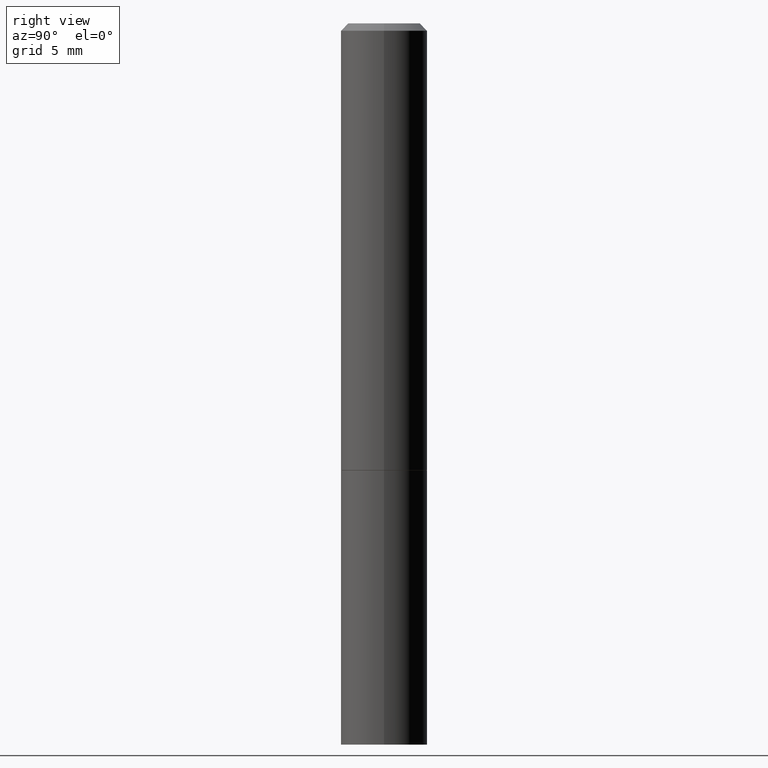
[diagram: clean part render]
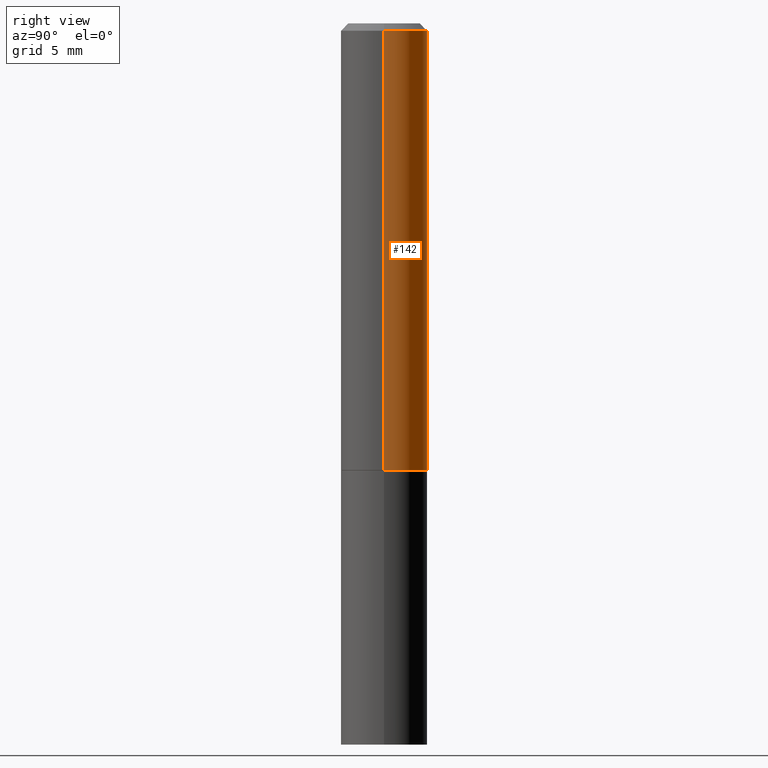
[diagram: same view with one face highlighted and labeled with its STEP entity id]
A machine part, right view. The second image highlights one B-rep face of the part: STEP entity #142.
In plain terms, the highlighted cylindrical surface (partial cylindrical patch) has radius 2.9997 mm, axis along (-0, 0, 1).
Its self-contained STEP definition (entity closure, byte-faithful):
#4 = DIRECTION ( 'NONE',  ( 1.000000000000000000, -6.982962677686265133E-15, 0.000000000000000000 ) ) ;
#5 = EDGE_CURVE ( 'NONE', #256, #266, #314, .T. ) ;
#28 = ORIENTED_EDGE ( 'NONE', *, *, #232, .T. ) ;
#38 = DIRECTION ( 'NONE',  ( 1.000000000000000000, -6.982962677686266711E-15, 0.000000000000000000 ) ) ;
#41 = FACE_OUTER_BOUND ( 'NONE', #196, .T. ) ;
#47 = DIRECTION ( 'NONE',  ( -2.445468806185136877E-29, 3.491481338843145188E-15, 1.000000000000000000 ) ) ;
#48 = CARTESIAN_POINT ( 'NONE',  ( 4.890937612370281041E-31, -6.982962677686302702E-17, -0.02000000000000003511 ) ) ;
#67 = LINE ( 'NONE', #102, #285 ) ;
#73 = CARTESIAN_POINT ( 'NONE',  ( 0.1180999999999999966, -5.082549384953964283E-15, -1.219500000000000028 ) ) ;
#77 = EDGE_CURVE ( 'NONE', #256, #138, #184, .T. ) ;
#90 = DIRECTION ( 'NONE',  ( -2.445468806185136597E-29, 3.491481338843145583E-15, 1.000000000000000000 ) ) ;
#94 = EDGE_CURVE ( 'NONE', #138, #113, #134, .T. ) ;
#102 = CARTESIAN_POINT ( 'NONE',  ( -0.1180999999999999134, 8.391509709326777040E-16, -5.809262341591039580E-30 ) ) ;
#113 = VERTEX_POINT ( 'NONE', #187 ) ;
#122 = AXIS2_PLACEMENT_3D ( 'NONE', #176, #90, #207 ) ;
#134 = CIRCLE ( 'NONE', #265, 0.1180999999999998301 ) ;
#138 = VERTEX_POINT ( 'NONE', #321 ) ;
#142 = ADVANCED_FACE ( 'NONE', ( #41 ), #300, .T. ) ;
#143 = DIRECTION ( 'NONE',  ( -2.445468806185136597E-29, 3.491481338843145583E-15, 1.000000000000000000 ) ) ;
#146 = VECTOR ( 'NONE', #188, 39.37007874015748143 ) ;
#169 = CARTESIAN_POINT ( 'NONE',  ( 2.982249209142773869E-29, -4.257861492719216809E-15, -1.219500000000000028 ) ) ;
#176 = CARTESIAN_POINT ( 'NONE',  ( 0.000000000000000000, 0.000000000000000000, 0.000000000000000000 ) ) ;
#182 = AXIS2_PLACEMENT_3D ( 'NONE', #169, #264, #4 ) ;
#184 = LINE ( 'NONE', #277, #146 ) ;
#187 = CARTESIAN_POINT ( 'NONE',  ( -0.1180999999999998301, 7.548582654578837811E-16, -0.02000000000000003511 ) ) ;
#188 = DIRECTION ( 'NONE',  ( -2.445468806185136877E-29, 3.491481338843145188E-15, 1.000000000000000000 ) ) ;
#196 = EDGE_LOOP ( 'NONE', ( #276, #28, #332, #356 ) ) ;
#207 = DIRECTION ( 'NONE',  ( 1.000000000000000000, -6.982962677686266711E-15, 4.876176775795935793E-29 ) ) ;
#232 = EDGE_CURVE ( 'NONE', #266, #113, #67, .T. ) ;
#256 = VERTEX_POINT ( 'NONE', #73 ) ;
#264 = DIRECTION ( 'NONE',  ( -2.445468806185136597E-29, 3.491481338843145583E-15, 1.000000000000000000 ) ) ;
#265 = AXIS2_PLACEMENT_3D ( 'NONE', #48, #143, #38 ) ;
#266 = VERTEX_POINT ( 'NONE', #325 ) ;
#276 = ORIENTED_EDGE ( 'NONE', *, *, #5, .T. ) ;
#277 = CARTESIAN_POINT ( 'NONE',  ( 0.1180999999999999134, -8.246878922347474737E-16, 5.758764772214996237E-30 ) ) ;
#285 = VECTOR ( 'NONE', #47, 39.37007874015748143 ) ;
#300 = CYLINDRICAL_SURFACE ( 'NONE', #122, 0.1180999999999999134 ) ;
#314 = CIRCLE ( 'NONE', #182, 0.1180999999999999966 ) ;
#321 = CARTESIAN_POINT ( 'NONE',  ( 0.1180999999999998301, -8.800544403136797528E-16, -0.02000000000000003511 ) ) ;
#325 = CARTESIAN_POINT ( 'NONE',  ( -0.1180999999999999966, -1.324694588815359885E-15, -1.219500000000000028 ) ) ;
#332 = ORIENTED_EDGE ( 'NONE', *, *, #94, .F. ) ;
#356 = ORIENTED_EDGE ( 'NONE', *, *, #77, .F. ) ;